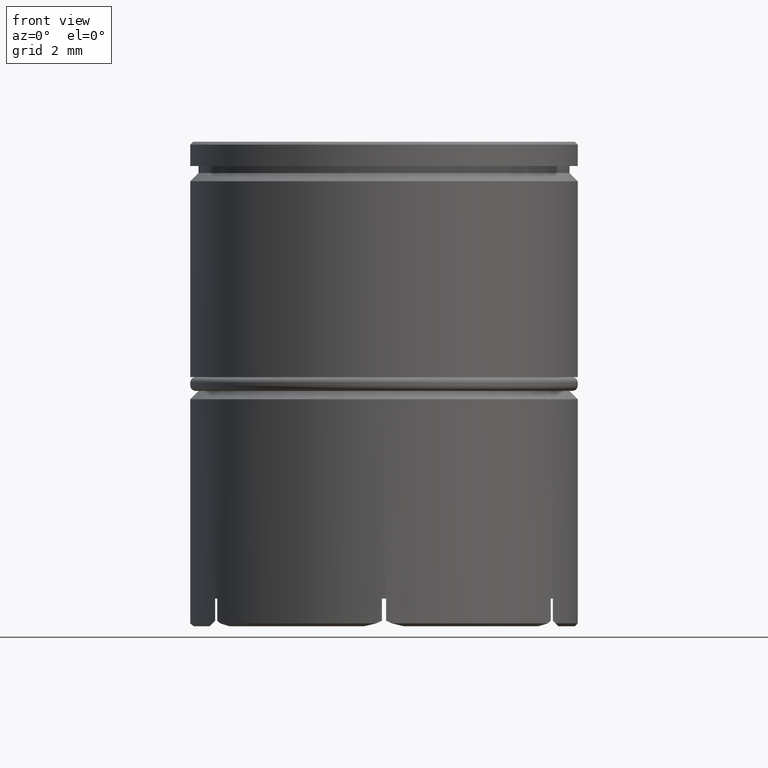
[diagram: clean part render]
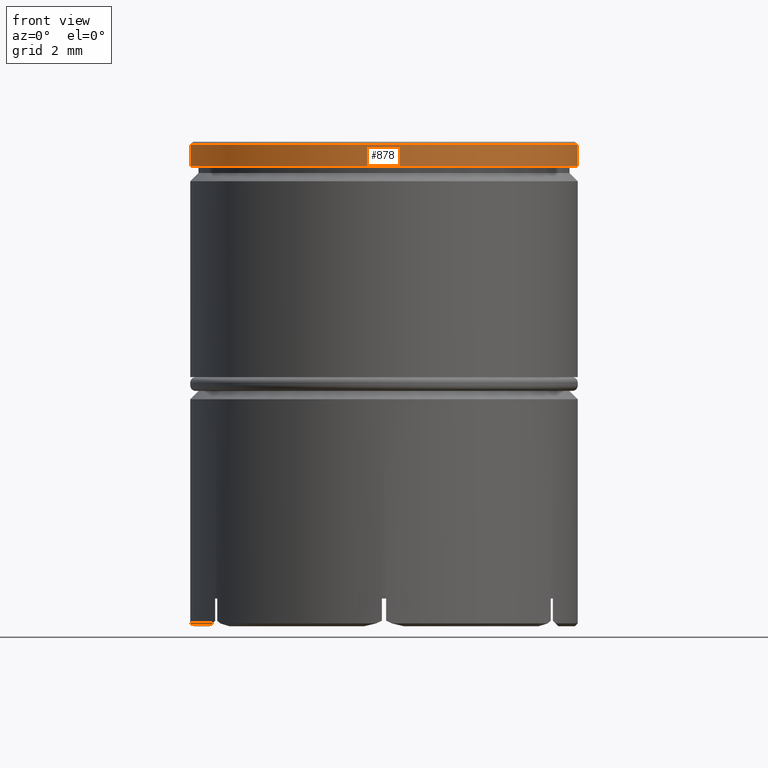
[diagram: same view with one face highlighted and labeled with its STEP entity id]
A machine part, front view. The second image highlights one B-rep face of the part: STEP entity #878.
In plain terms, the highlighted cylindrical surface (partial cylindrical patch) has radius 7 mm, axis along (-0, -0, 1).
Its self-contained STEP definition (entity closure, byte-faithful):
#20 = EDGE_LOOP ( 'NONE', ( #1333, #373, #845, #1545 ) ) ;
#290 = DIRECTION ( 'NONE',  ( 0.000000000000000000, 0.000000000000000000, -1.000000000000000000 ) ) ;
#295 = VECTOR ( 'NONE', #897, 1000.000000000000000 ) ;
#332 = VERTEX_POINT ( 'NONE', #395 ) ;
#373 = ORIENTED_EDGE ( 'NONE', *, *, #1480, .T. ) ;
#388 = EDGE_CURVE ( 'NONE', #685, #1312, #495, .T. ) ;
#395 = CARTESIAN_POINT ( 'NONE',  ( -7.000000000000000888, 8.572527594031474176E-16, -0.1000000000000011297 ) ) ;
#403 = AXIS2_PLACEMENT_3D ( 'NONE', #1422, #927, #1038 ) ;
#451 = AXIS2_PLACEMENT_3D ( 'NONE', #1313, #290, #1322 ) ;
#465 = CARTESIAN_POINT ( 'NONE',  ( 0.000000000000000000, 0.000000000000000000, 0.000000000000000000 ) ) ;
#474 = FACE_OUTER_BOUND ( 'NONE', #20, .T. ) ;
#495 = LINE ( 'NONE', #1395, #857 ) ;
#518 = EDGE_CURVE ( 'NONE', #972, #332, #983, .T. ) ;
#642 = CARTESIAN_POINT ( 'NONE',  ( 7.000000000000000888, 0.000000000000000000, -0.8749999999999998890 ) ) ;
#685 = VERTEX_POINT ( 'NONE', #642 ) ;
#845 = ORIENTED_EDGE ( 'NONE', *, *, #388, .T. ) ;
#857 = VECTOR ( 'NONE', #1008, 1000.000000000000000 ) ;
#878 = ADVANCED_FACE ( 'NONE', ( #474 ), #1005, .T. ) ;
#897 = DIRECTION ( 'NONE',  ( -0.000000000000000000, -0.000000000000000000, 1.000000000000000000 ) ) ;
#927 = DIRECTION ( 'NONE',  ( -0.000000000000000000, -0.000000000000000000, 1.000000000000000000 ) ) ;
#972 = VERTEX_POINT ( 'NONE', #1269 ) ;
#983 = LINE ( 'NONE', #1120, #295 ) ;
#1000 = DIRECTION ( 'NONE',  ( -0.000000000000000000, -0.000000000000000000, 1.000000000000000000 ) ) ;
#1003 = CARTESIAN_POINT ( 'NONE',  ( 7.000000000000000888, 0.000000000000000000, -0.1000000000000011297 ) ) ;
#1005 = CYLINDRICAL_SURFACE ( 'NONE', #1128, 7.000000000000000888 ) ;
#1008 = DIRECTION ( 'NONE',  ( -0.000000000000000000, -0.000000000000000000, 1.000000000000000000 ) ) ;
#1038 = DIRECTION ( 'NONE',  ( 1.000000000000000000, 0.000000000000000000, 0.000000000000000000 ) ) ;
#1118 = DIRECTION ( 'NONE',  ( 1.000000000000000000, 0.000000000000000000, 0.000000000000000000 ) ) ;
#1120 = CARTESIAN_POINT ( 'NONE',  ( -7.000000000000000888, 8.572527594031474176E-16, 0.000000000000000000 ) ) ;
#1128 = AXIS2_PLACEMENT_3D ( 'NONE', #465, #1000, #1118 ) ;
#1187 = CIRCLE ( 'NONE', #451, 7.000000000000000888 ) ;
#1269 = CARTESIAN_POINT ( 'NONE',  ( -7.000000000000000888, 8.572527594031474176E-16, -0.8749999999999998890 ) ) ;
#1312 = VERTEX_POINT ( 'NONE', #1003 ) ;
#1313 = CARTESIAN_POINT ( 'NONE',  ( 0.000000000000000000, 0.000000000000000000, -0.1000000000000011297 ) ) ;
#1319 = CIRCLE ( 'NONE', #403, 7.000000000000000888 ) ;
#1322 = DIRECTION ( 'NONE',  ( 1.000000000000000000, 0.000000000000000000, 0.000000000000000000 ) ) ;
#1333 = ORIENTED_EDGE ( 'NONE', *, *, #518, .F. ) ;
#1395 = CARTESIAN_POINT ( 'NONE',  ( 7.000000000000000888, 0.000000000000000000, 0.000000000000000000 ) ) ;
#1422 = CARTESIAN_POINT ( 'NONE',  ( 0.000000000000000000, 0.000000000000000000, -0.8749999999999998890 ) ) ;
#1480 = EDGE_CURVE ( 'NONE', #972, #685, #1319, .T. ) ;
#1545 = ORIENTED_EDGE ( 'NONE', *, *, #1594, .T. ) ;
#1594 = EDGE_CURVE ( 'NONE', #1312, #332, #1187, .T. ) ;